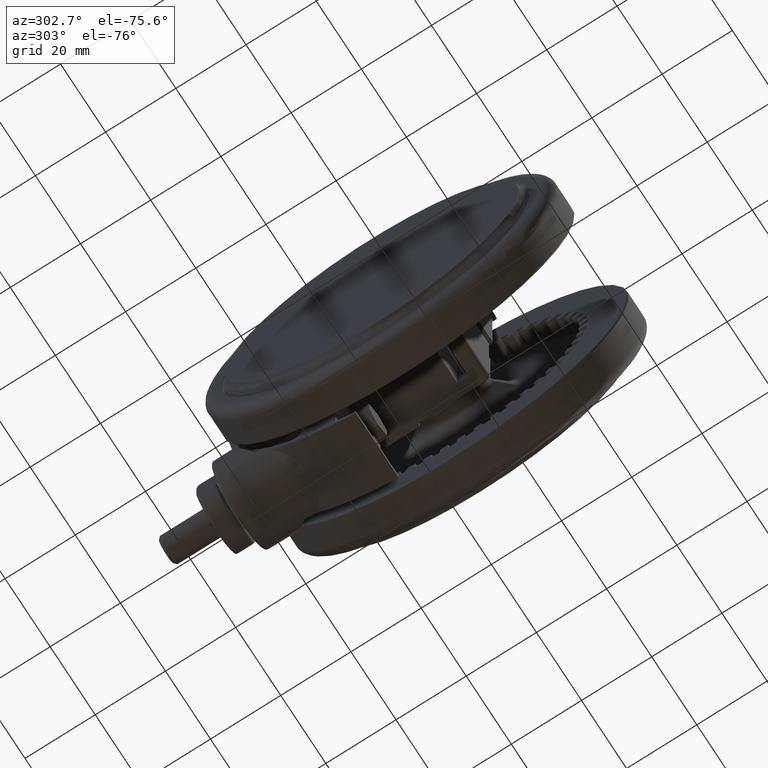
[diagram: clean part render]
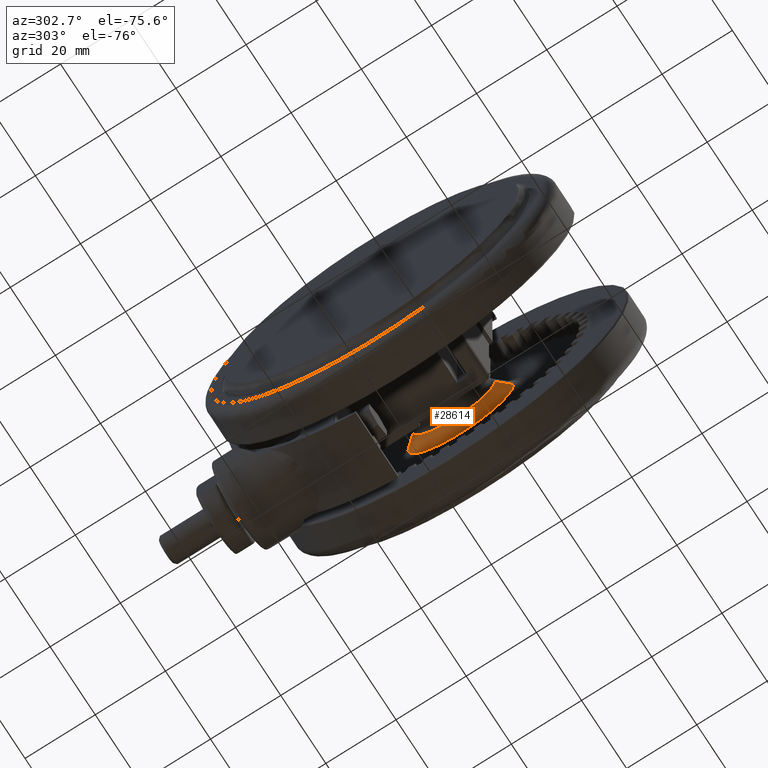
[diagram: same view with one face highlighted and labeled with its STEP entity id]
A machine part, auxiliary view. The second image highlights one B-rep face of the part: STEP entity #28614.
In plain terms, the highlighted conical surface has half-angle 47.726 deg.
Its self-contained STEP definition (entity closure, byte-faithful):
#629 = EDGE_CURVE ( 'NONE', #42658, #13695, #39028, .T. ) ;
#7942 = LINE ( 'NONE', #40266, #10315 ) ;
#8360 = CARTESIAN_POINT ( 'NONE',  ( -1.405650446830933600E-014, 1.287725246413426900E-015, -12.00485962544778200 ) ) ;
#10315 = VECTOR ( 'NONE', #17702, 1000.000000000000100 ) ;
#10738 = DIRECTION ( 'NONE',  ( -2.126349141558171500E-017, -1.563809541294688800E-016, -1.000000000000000000 ) ) ;
#11662 = CARTESIAN_POINT ( 'NONE',  ( -1.364323386623826700E-014, -11.65465441200737300, -12.00485962544778000 ) ) ;
#12182 = DIRECTION ( 'NONE',  ( -1.509229262741581400E-016, 1.000000000000000000, 0.0000000000000000000 ) ) ;
#13695 = VERTEX_POINT ( 'NONE', #31853 ) ;
#15849 = CARTESIAN_POINT ( 'NONE',  ( -1.581545901688351600E-014, 11.65465441200737700, -12.00485962544778200 ) ) ;
#17702 = DIRECTION ( 'NONE',  ( 3.536076908054703600E-017, -0.7399400733959440300, 0.6726727939963120800 ) ) ;
#21104 = EDGE_CURVE ( 'NONE', #45523, #42658, #7942, .T. ) ;
#21933 = AXIS2_PLACEMENT_3D ( 'NONE', #35933, #24696, #32283 ) ;
#24696 = DIRECTION ( 'NONE',  ( 2.126349141558171500E-017, 1.563809541294688800E-016, 1.000000000000000000 ) ) ;
#25719 = DIRECTION ( 'NONE',  ( -9.737054896379517700E-017, 0.7399400733959441400, 0.6726727939963119700 ) ) ;
#28614 = ADVANCED_FACE ( 'NONE', ( #42224 ), #41073, .T. ) ;
#29112 = EDGE_LOOP ( 'NONE', ( #48294, #35810, #46279, #37682 ) ) ;
#29226 = EDGE_CURVE ( 'NONE', #30366, #13695, #29833, .T. ) ;
#29833 = LINE ( 'NONE', #44499, #47491 ) ;
#30366 = VERTEX_POINT ( 'NONE', #15849 ) ;
#31199 = AXIS2_PLACEMENT_3D ( 'NONE', #33392, #10738, #37217 ) ;
#31557 = CIRCLE ( 'NONE', #36863, 11.65465441200737500 ) ;
#31853 = CARTESIAN_POINT ( 'NONE',  ( -1.855627835848366400E-014, 15.06967040367769600, -8.900299633020221500 ) ) ;
#32283 = DIRECTION ( 'NONE',  ( -1.509229262741578900E-016, 1.000000000000000000, 0.0000000000000000000 ) ) ;
#33392 = CARTESIAN_POINT ( 'NONE',  ( -1.399049068356119500E-014, 7.911710182845832200E-016, -8.900299633020219800 ) ) ;
#34829 = DIRECTION ( 'NONE',  ( 2.126349141558171500E-017, 1.563809541294688800E-016, 1.000000000000000000 ) ) ;
#35810 = ORIENTED_EDGE ( 'NONE', *, *, #21104, .T. ) ;
#35933 = CARTESIAN_POINT ( 'NONE',  ( -1.406915923055469400E-014, 1.194656626799991000E-015, -12.59999999999993900 ) ) ;
#36537 = EDGE_CURVE ( 'NONE', #30366, #45523, #31557, .T. ) ;
#36863 = AXIS2_PLACEMENT_3D ( 'NONE', #8360, #34829, #12182 ) ;
#37217 = DIRECTION ( 'NONE',  ( -1.509229262741579100E-016, 1.000000000000000000, 0.0000000000000000000 ) ) ;
#37682 = ORIENTED_EDGE ( 'NONE', *, *, #29226, .F. ) ;
#38385 = CARTESIAN_POINT ( 'NONE',  ( -1.144850310697153700E-014, -15.06967040367769600, -8.900299633020218000 ) ) ;
#39028 = CIRCLE ( 'NONE', #31199, 15.06967040367769400 ) ;
#40266 = CARTESIAN_POINT ( 'NONE',  ( -1.375611852060104400E-014, -10.99999999999999800, -12.59999999999993900 ) ) ;
#41073 = CONICAL_SURFACE ( 'NONE', #21933, 11.00000000000000000, 0.8329812666744321700 ) ;
#42224 = FACE_OUTER_BOUND ( 'NONE', #29112, .T. ) ;
#42658 = VERTEX_POINT ( 'NONE', #38385 ) ;
#44499 = CARTESIAN_POINT ( 'NONE',  ( -1.572931141957043100E-014, 11.00000000000000200, -12.59999999999993900 ) ) ;
#45523 = VERTEX_POINT ( 'NONE', #11662 ) ;
#46279 = ORIENTED_EDGE ( 'NONE', *, *, #629, .T. ) ;
#47491 = VECTOR ( 'NONE', #25719, 1000.000000000000100 ) ;
#48294 = ORIENTED_EDGE ( 'NONE', *, *, #36537, .T. ) ;